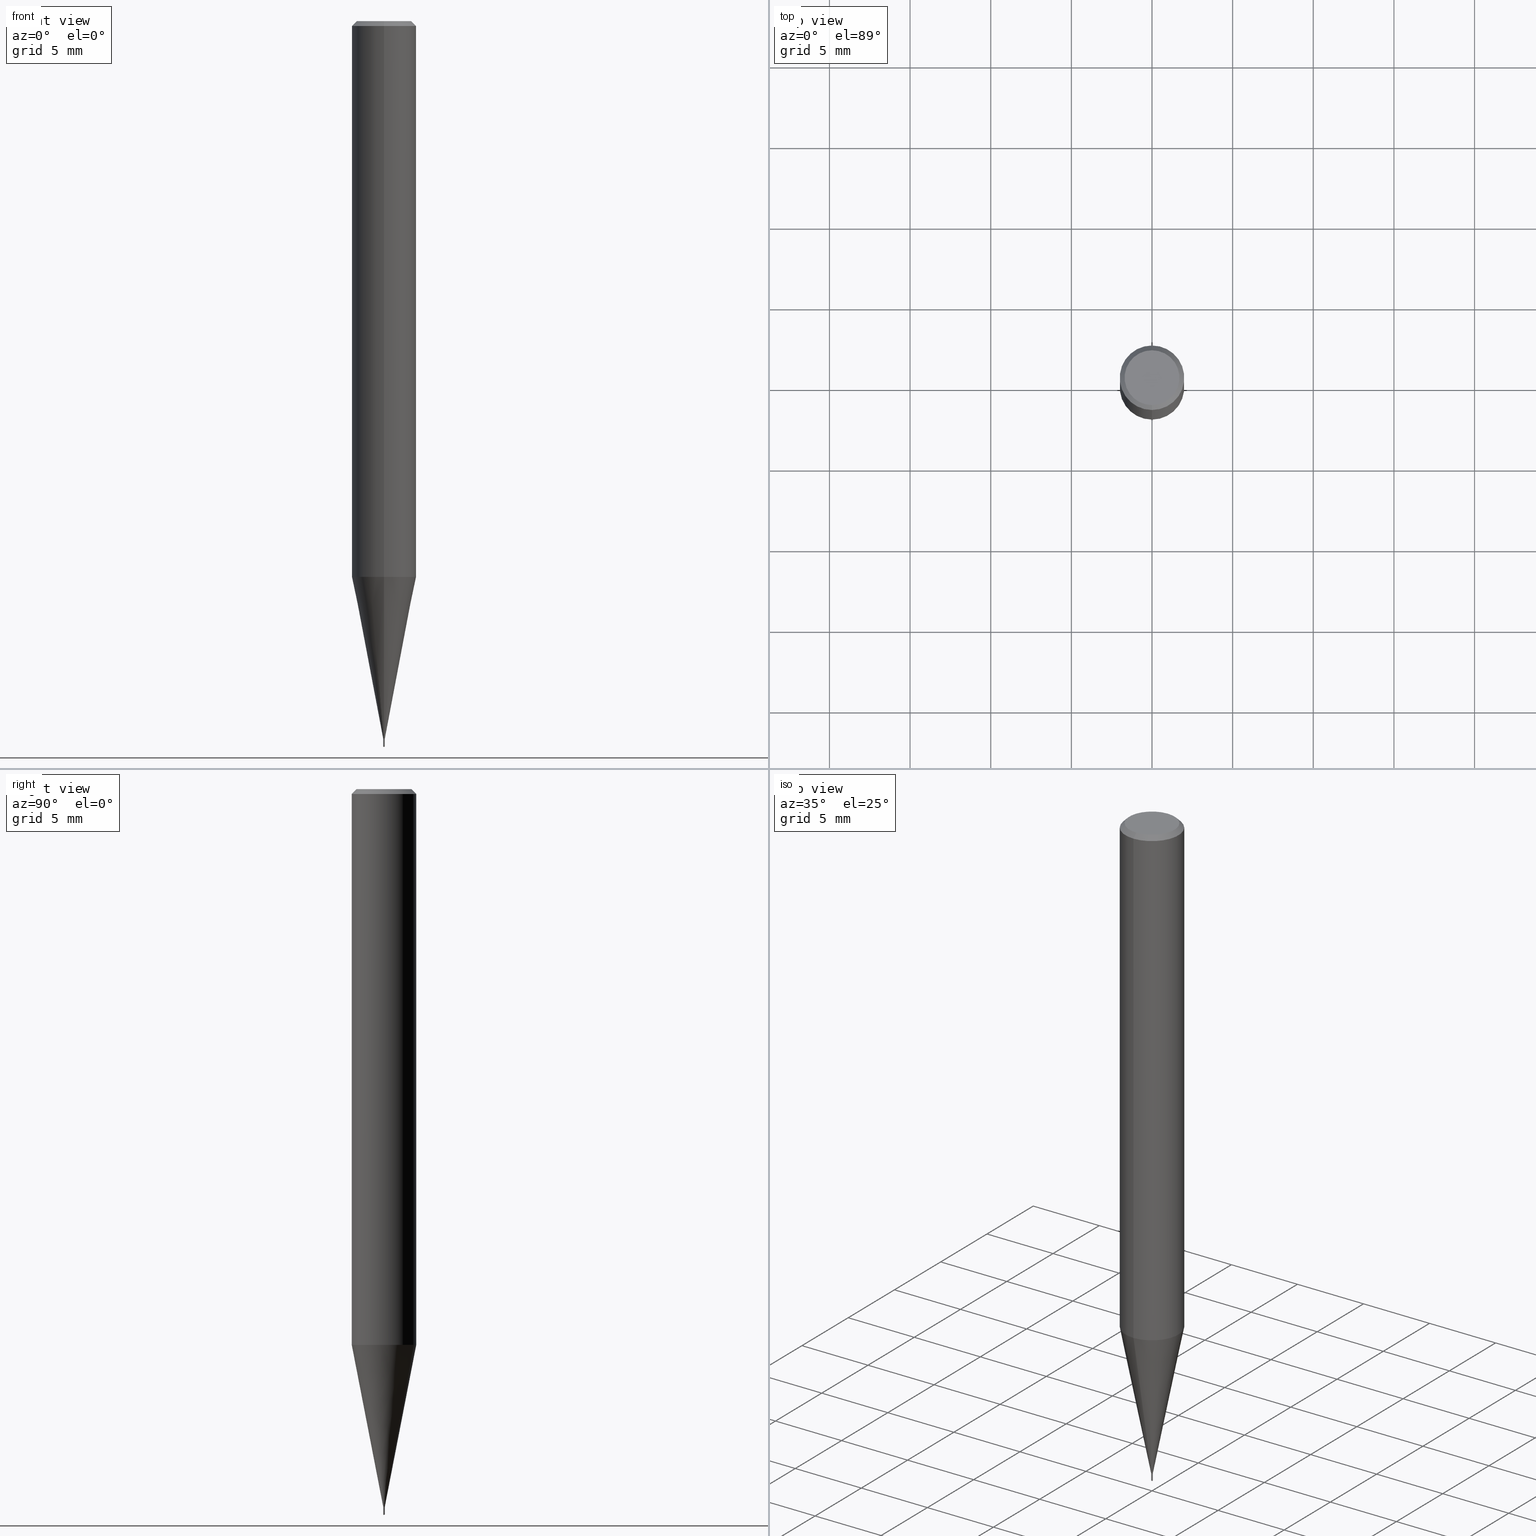
[diagram: canonical four-view strip — front | top / right | iso, engineering-drawing reading convention]
A machine part, canonical four-view strip (front | top / right | iso — engineering-drawing reading convention). The complete STEP part file that produces these views, byte-faithful:
ISO-10303-21;
HEADER;
FILE_DESCRIPTION(('no description'),'unknown implementation level');
FILE_NAME('HSLB2001-005-Huellk.stp','  ',('CIMSOURCE GmbH'),('CADClick - KiM GmbH - www.kimweb.de'),'unknown preprocess','ACIS','unknown authorization');
FILE_SCHEMA(('automotive_design'));
ENDSEC;
DATA;
#1=MECHANICAL_DESIGN_GEOMETRIC_PRESENTATION_REPRESENTATION(' ',(#14,#15,#16,#17,#18,#19,#20,#21,#22,#23,#24,#25,#26,#27,#28,#29,#30,#31,#32,#33,#34,#35,#36,#37,#38,#39,#40,#41,#42,#43,#44,#45,#46,#47,#48,#49,#50,#51,#52,#53,#54,#55,#56,#57,#58,#59,#60,#61,#62,#63,#64,#65,#66,#67,#68,#69,#70,#71,#72,#73,#74),#10);
#2=PRODUCT_DEFINITION_CONTEXT('',#75,'design');
#3=APPLICATION_PROTOCOL_DEFINITION('INTERNATIONAL STANDARD','automotive_design',1994,#75);
#4=PRODUCT_CATEGORY_RELATIONSHIP('NONE','NONE',#76,#77);
#5=SHAPE_DEFINITION_REPRESENTATION(#78,#79);
#6=PRODUCT_DEFINITION_CONTEXT('',#80,'design');
#7=APPLICATION_PROTOCOL_DEFINITION('INTERNATIONAL STANDARD','automotive_design',1994,#80);
#8=PRODUCT_CATEGORY_RELATIONSHIP('NONE','NONE',#81,#82);
#9=SHAPE_DEFINITION_REPRESENTATION(#83,#84);
#10= (GEOMETRIC_REPRESENTATION_CONTEXT(3)GLOBAL_UNCERTAINTY_ASSIGNED_CONTEXT((#87))GLOBAL_UNIT_ASSIGNED_CONTEXT((#89,#90,#91))REPRESENTATION_CONTEXT('NONE','WORKSPACE'));
#14=STYLED_ITEM('',(#93),#94);
#15=STYLED_ITEM('',(#95),#96);
#16=STYLED_ITEM('',(#97),#98);
#17=STYLED_ITEM('',(#99),#100);
#18=STYLED_ITEM('',(#101),#102);
#19=STYLED_ITEM('',(#103),#104);
#20=STYLED_ITEM('',(#105),#106);
#21=STYLED_ITEM('',(#107),#108);
#22=STYLED_ITEM('',(#109),#110);
#23=STYLED_ITEM('',(#111),#112);
#24=STYLED_ITEM('',(#113),#114);
#25=STYLED_ITEM('',(#115),#116);
#26=STYLED_ITEM('',(#117),#118);
#27=STYLED_ITEM('',(#119),#120);
#28=STYLED_ITEM('',(#121),#122);
#29=STYLED_ITEM('',(#123),#124);
#30=STYLED_ITEM('',(#125),#126);
#31=STYLED_ITEM('',(#127),#128);
#32=STYLED_ITEM('',(#129),#130);
#33=STYLED_ITEM('',(#131),#132);
#34=STYLED_ITEM('',(#133),#134);
#35=STYLED_ITEM('',(#135),#136);
#36=STYLED_ITEM('',(#137),#138);
#37=STYLED_ITEM('',(#139),#140);
#38=STYLED_ITEM('',(#141),#142);
#39=STYLED_ITEM('',(#143),#144);
#40=STYLED_ITEM('',(#145),#146);
#41=STYLED_ITEM('',(#147),#148);
#42=STYLED_ITEM('',(#149),#150);
#43=STYLED_ITEM('',(#151),#152);
#44=STYLED_ITEM('',(#153),#154);
#45=STYLED_ITEM('',(#155),#156);
#46=STYLED_ITEM('',(#157),#158);
#47=STYLED_ITEM('',(#159),#160);
#48=STYLED_ITEM('',(#161),#162);
#49=STYLED_ITEM('',(#163),#164);
#50=STYLED_ITEM('',(#165),#166);
#51=STYLED_ITEM('',(#167),#168);
#52=STYLED_ITEM('',(#169),#170);
#53=STYLED_ITEM('',(#171),#172);
#54=STYLED_ITEM('',(#173),#174);
#55=STYLED_ITEM('',(#175),#176);
#56=STYLED_ITEM('',(#177),#178);
#57=STYLED_ITEM('',(#179),#180);
#58=STYLED_ITEM('',(#181),#182);
#59=STYLED_ITEM('',(#183),#184);
#60=STYLED_ITEM('',(#185),#186);
#61=STYLED_ITEM('',(#187),#188);
#62=STYLED_ITEM('',(#189),#190);
#63=STYLED_ITEM('',(#191),#192);
#64=STYLED_ITEM('',(#193),#194);
#65=STYLED_ITEM('',(#195),#196);
#66=STYLED_ITEM('',(#197),#198);
#67=STYLED_ITEM('',(#199),#200);
#68=STYLED_ITEM('',(#201),#202);
#69=STYLED_ITEM('',(#203),#204);
#70=STYLED_ITEM('',(#205),#206);
#71=STYLED_ITEM('',(#207),#208);
#72=STYLED_ITEM('',(#209),#210);
#73=STYLED_ITEM('',(#211),#212);
#74=STYLED_ITEM('',(#213),#214);
#75=APPLICATION_CONTEXT(' ');
#76=PRODUCT_CATEGORY('part','NONE');
#77=PRODUCT_RELATED_PRODUCT_CATEGORY('detail',' ',(#215));
#78=PRODUCT_DEFINITION_SHAPE('NONE','NONE',#216);
#79=ADVANCED_BREP_SHAPE_REPRESENTATION('1',(#202,#217),#10);
#80=APPLICATION_CONTEXT(' ');
#81=PRODUCT_CATEGORY('part','NONE');
#82=PRODUCT_RELATED_PRODUCT_CATEGORY('detail',' ',(#218));
#83=PRODUCT_DEFINITION_SHAPE('NONE','NONE',#219);
#84=ADVANCED_BREP_SHAPE_REPRESENTATION('2',(#158,#220),#10);
#87=UNCERTAINTY_MEASURE_WITH_UNIT(LENGTH_MEASURE(1.0E-006),#89,'','');
#89= (CONVERSION_BASED_UNIT('MILLIMETRE',#223)LENGTH_UNIT()NAMED_UNIT(#226));
#90= (NAMED_UNIT(#228)PLANE_ANGLE_UNIT()SI_UNIT($,.RADIAN.));
#91= (NAMED_UNIT(#228)SOLID_ANGLE_UNIT()SI_UNIT($,.STERADIAN.));
#93=PRESENTATION_STYLE_ASSIGNMENT((#234));
#94=ADVANCED_FACE('',(#235),#236,.T.);
#95=PRESENTATION_STYLE_ASSIGNMENT((#237));
#96=EDGE_CURVE('',#198,#172,#238,.T.);
#97=PRESENTATION_STYLE_ASSIGNMENT((#239));
#98=EDGE_CURVE('',#132,#160,#240,.T.);
#99=PRESENTATION_STYLE_ASSIGNMENT((#241));
#100=VERTEX_POINT('',#242);
#101=PRESENTATION_STYLE_ASSIGNMENT((#243));
#102=EDGE_CURVE('',#188,#190,#244,.T.);
#103=PRESENTATION_STYLE_ASSIGNMENT((#245));
#104=ADVANCED_FACE('',(#246),#247,.T.);
#105=PRESENTATION_STYLE_ASSIGNMENT((#248));
#106=ADVANCED_FACE('',(#249),#250,.T.);
#107=PRESENTATION_STYLE_ASSIGNMENT((#251));
#108=EDGE_CURVE('',#196,#122,#252,.T.);
#109=PRESENTATION_STYLE_ASSIGNMENT((#253));
#110=ADVANCED_FACE('',(#254),#255,.T.);
#111=PRESENTATION_STYLE_ASSIGNMENT((#256));
#112=ADVANCED_FACE('',(#257),#258,.T.);
#113=PRESENTATION_STYLE_ASSIGNMENT((#259));
#114=EDGE_CURVE('',#160,#180,#260,.T.);
#115=PRESENTATION_STYLE_ASSIGNMENT((#261));
#116=EDGE_CURVE('',#198,#194,#262,.T.);
#117=PRESENTATION_STYLE_ASSIGNMENT((#263));
#118=ADVANCED_FACE('',(#264),#265,.T.);
#119=PRESENTATION_STYLE_ASSIGNMENT((#266));
#120=EDGE_CURVE('',#182,#122,#267,.T.);
#121=PRESENTATION_STYLE_ASSIGNMENT((#268));
#122=VERTEX_POINT('',#269);
#123=PRESENTATION_STYLE_ASSIGNMENT((#270));
#124=ADVANCED_FACE('',(#271),#272,.T.);
#125=PRESENTATION_STYLE_ASSIGNMENT((#273));
#126=ADVANCED_FACE('',(#274),#275,.T.);
#127=PRESENTATION_STYLE_ASSIGNMENT((#276));
#128=EDGE_CURVE('',#186,#142,#277,.T.);
#129=PRESENTATION_STYLE_ASSIGNMENT((#278));
#130=ADVANCED_FACE('',(#279),#280,.T.);
#131=PRESENTATION_STYLE_ASSIGNMENT((#281));
#132=VERTEX_POINT('',#282);
#133=PRESENTATION_STYLE_ASSIGNMENT((#283));
#134=EDGE_CURVE('',#180,#160,#284,.T.);
#135=PRESENTATION_STYLE_ASSIGNMENT((#285));
#136=ADVANCED_FACE('',(#286),#287,.T.);
#137=PRESENTATION_STYLE_ASSIGNMENT((#288));
#138=VERTEX_POINT('',#289);
#139=PRESENTATION_STYLE_ASSIGNMENT((#290));
#140=ADVANCED_FACE('',(#291),#292,.T.);
#141=PRESENTATION_STYLE_ASSIGNMENT((#293));
#142=VERTEX_POINT('',#294);
#143=PRESENTATION_STYLE_ASSIGNMENT((#295));
#144=ADVANCED_FACE('',(#296,#297),#298,.T.);
#145=PRESENTATION_STYLE_ASSIGNMENT((#299));
#146=VERTEX_POINT('',#300);
#147=PRESENTATION_STYLE_ASSIGNMENT((#301));
#148=EDGE_CURVE('',#142,#188,#302,.T.);
#149=PRESENTATION_STYLE_ASSIGNMENT((#303));
#150=EDGE_CURVE('',#138,#142,#304,.T.);
#151=PRESENTATION_STYLE_ASSIGNMENT((#305));
#152=EDGE_CURVE('',#194,#198,#306,.T.);
#153=PRESENTATION_STYLE_ASSIGNMENT((#307));
#154=EDGE_CURVE('',#190,#188,#308,.T.);
#155=PRESENTATION_STYLE_ASSIGNMENT((#309));
#156=ADVANCED_FACE('',(#310),#311,.T.);
#157=PRESENTATION_STYLE_ASSIGNMENT((#312));
#158=MANIFOLD_SOLID_BREP('2',#313);
#159=PRESENTATION_STYLE_ASSIGNMENT((#314));
#160=VERTEX_POINT('',#315);
#161=PRESENTATION_STYLE_ASSIGNMENT((#316));
#162=ADVANCED_FACE('',(#317),#318,.T.);
#163=PRESENTATION_STYLE_ASSIGNMENT((#319));
#164=EDGE_CURVE('',#146,#172,#320,.T.);
#165=PRESENTATION_STYLE_ASSIGNMENT((#321));
#166=EDGE_CURVE('',#122,#182,#322,.T.);
#167=PRESENTATION_STYLE_ASSIGNMENT((#323));
#168=EDGE_CURVE('',#182,#132,#324,.T.);
#169=PRESENTATION_STYLE_ASSIGNMENT((#325));
#170=EDGE_CURVE('',#100,#138,#326,.T.);
#171=PRESENTATION_STYLE_ASSIGNMENT((#327));
#172=VERTEX_POINT('',#328);
#173=PRESENTATION_STYLE_ASSIGNMENT((#329));
#174=EDGE_CURVE('',#146,#194,#330,.T.);
#175=PRESENTATION_STYLE_ASSIGNMENT((#331));
#176=EDGE_CURVE('',#172,#146,#332,.T.);
#177=PRESENTATION_STYLE_ASSIGNMENT((#333));
#178=EDGE_CURVE('',#190,#186,#334,.T.);
#179=PRESENTATION_STYLE_ASSIGNMENT((#335));
#180=VERTEX_POINT('',#336);
#181=PRESENTATION_STYLE_ASSIGNMENT((#337));
#182=VERTEX_POINT('',#338);
#183=PRESENTATION_STYLE_ASSIGNMENT((#339));
#184=EDGE_CURVE('',#180,#196,#340,.T.);
#185=PRESENTATION_STYLE_ASSIGNMENT((#341));
#186=VERTEX_POINT('',#342);
#187=PRESENTATION_STYLE_ASSIGNMENT((#343));
#188=VERTEX_POINT('',#344);
#189=PRESENTATION_STYLE_ASSIGNMENT((#345));
#190=VERTEX_POINT('',#346);
#191=PRESENTATION_STYLE_ASSIGNMENT((#347));
#192=EDGE_CURVE('',#132,#196,#348,.T.);
#193=PRESENTATION_STYLE_ASSIGNMENT((#349));
#194=VERTEX_POINT('',#350);
#195=PRESENTATION_STYLE_ASSIGNMENT((#351));
#196=VERTEX_POINT('',#352);
#197=PRESENTATION_STYLE_ASSIGNMENT((#353));
#198=VERTEX_POINT('',#354);
#199=PRESENTATION_STYLE_ASSIGNMENT((#355));
#200=EDGE_CURVE('',#196,#132,#356,.T.);
#201=PRESENTATION_STYLE_ASSIGNMENT((#357));
#202=MANIFOLD_SOLID_BREP('1',#358);
#203=PRESENTATION_STYLE_ASSIGNMENT((#359));
#204=EDGE_CURVE('',#138,#100,#360,.T.);
#205=PRESENTATION_STYLE_ASSIGNMENT((#361));
#206=EDGE_CURVE('',#186,#100,#362,.T.);
#207=PRESENTATION_STYLE_ASSIGNMENT((#363));
#208=ADVANCED_FACE('',(#364),#365,.T.);
#209=PRESENTATION_STYLE_ASSIGNMENT((#366));
#210=EDGE_CURVE('',#146,#172,#367,.T.);
#211=PRESENTATION_STYLE_ASSIGNMENT((#368));
#212=ADVANCED_FACE('',(#369),#370,.T.);
#213=PRESENTATION_STYLE_ASSIGNMENT((#371));
#214=EDGE_CURVE('',#142,#186,#372,.T.);
#215=PRODUCT('1','1','PART-1-DESC',(#373));
#216=PRODUCT_DEFINITION('NONE','NONE',#374,#2);
#217=AXIS2_PLACEMENT_3D('',#375,#376,#377);
#218=PRODUCT('2','2','PART-2-DESC',(#378));
#219=PRODUCT_DEFINITION('NONE','NONE',#379,#6);
#220=AXIS2_PLACEMENT_3D('',#380,#381,#382);
#223=LENGTH_MEASURE_WITH_UNIT(LENGTH_MEASURE(1.0),#383);
#226=DIMENSIONAL_EXPONENTS(1.0,0.0,0.0,0.0,0.0,0.0,0.0);
#228=DIMENSIONAL_EXPONENTS(0.0,0.0,0.0,0.0,0.0,0.0,0.0);
#234=SURFACE_STYLE_USAGE(.BOTH.,#384);
#235=FACE_OUTER_BOUND('',#385,.T.);
#236=CONICAL_SURFACE('',#386,1.0237,0.191981401646118);
#237=CURVE_STYLE('',#387,POSITIVE_LENGTH_MEASURE(1.0E-006),#388);
#238=LINE('',#389,#390);
#239=CURVE_STYLE('',#391,POSITIVE_LENGTH_MEASURE(1.0E-006),#392);
#240=LINE('',#393,#394);
#241=POINT_STYLE(' ',#395,POSITIVE_LENGTH_MEASURE(1.0E-006),#396);
#242=CARTESIAN_POINT('',(0.0,2.0,-34.455));
#243=CURVE_STYLE('',#397,POSITIVE_LENGTH_MEASURE(1.0E-006),#398);
#244=CIRCLE('',#399,1.7);
#245=SURFACE_STYLE_USAGE(.BOTH.,#400);
#246=FACE_OUTER_BOUND('',#401,.T.);
#247=CONICAL_SURFACE('',#402,1.85,0.785398163397453);
#248=SURFACE_STYLE_USAGE(.BOTH.,#403);
#249=FACE_OUTER_BOUND('',#404,.T.);
#250=CYLINDRICAL_SURFACE('',#405,0.04745);
#251=CURVE_STYLE('',#406,POSITIVE_LENGTH_MEASURE(1.0E-006),#407);
#252=LINE('',#408,#409);
#253=SURFACE_STYLE_USAGE(.BOTH.,#410);
#254=FACE_OUTER_BOUND('',#411,.T.);
#255=CONICAL_SURFACE('',#412,0.04995,0.00333332098773672);
#256=SURFACE_STYLE_USAGE(.BOTH.,#413);
#257=FACE_OUTER_BOUND('',#414,.T.);
#258=CYLINDRICAL_SURFACE('',#415,2.0);
#259=CURVE_STYLE('',#416,POSITIVE_LENGTH_MEASURE(1.0E-006),#417);
#260=CIRCLE('',#418,0.04745);
#261=CURVE_STYLE('',#419,POSITIVE_LENGTH_MEASURE(1.0E-006),#420);
#262=CIRCLE('',#421,0.0499);
#263=SURFACE_STYLE_USAGE(.BOTH.,#422);
#264=FACE_OUTER_BOUND('',#423,.T.);
#265=SPHERICAL_SURFACE('',#424,0.0500000000000001);
#266=CURVE_STYLE('',#425,POSITIVE_LENGTH_MEASURE(1.0E-006),#426);
#267=CIRCLE('',#427,1.99995);
#268=POINT_STYLE(' ',#428,POSITIVE_LENGTH_MEASURE(1.0E-006),#429);
#269=CARTESIAN_POINT('',(2.44915147732706E-016,-1.99995,-34.455));
#270=SURFACE_STYLE_USAGE(.BOTH.,#430);
#271=FACE_OUTER_BOUND('',#431,.T.);
#272=CYLINDRICAL_SURFACE('',#432,2.0);
#273=SURFACE_STYLE_USAGE(.BOTH.,#433);
#274=FACE_OUTER_BOUND('',#434,.T.);
#275=PLANE('',#435);
#276=CURVE_STYLE('',#436,POSITIVE_LENGTH_MEASURE(1.0E-006),#437);
#277=CIRCLE('',#438,2.0);
#278=SURFACE_STYLE_USAGE(.BOTH.,#439);
#279=FACE_OUTER_BOUND('',#440,.T.);
#280=CONICAL_SURFACE('',#441,0.04995,0.00333332098773672);
#281=POINT_STYLE(' ',#442,POSITIVE_LENGTH_MEASURE(1.0E-006),#443);
#282=CARTESIAN_POINT('',(0.0,0.04745,-44.5));
#283=CURVE_STYLE('',#444,POSITIVE_LENGTH_MEASURE(1.0E-006),#445);
#284=CIRCLE('',#446,0.04745);
#285=SURFACE_STYLE_USAGE(.BOTH.,#447);
#286=FACE_OUTER_BOUND('',#448,.T.);
#287=CYLINDRICAL_SURFACE('',#449,0.04745);
#288=POINT_STYLE(' ',#450,POSITIVE_LENGTH_MEASURE(1.0E-006),#451);
#289=CARTESIAN_POINT('',(2.44921270764475E-016,-2.0,-34.455));
#290=SURFACE_STYLE_USAGE(.BOTH.,#452);
#291=FACE_OUTER_BOUND('',#453,.T.);
#292=CONICAL_SURFACE('',#454,1.0237,0.191981401646118);
#293=POINT_STYLE(' ',#455,POSITIVE_LENGTH_MEASURE(1.0E-006),#456);
#294=CARTESIAN_POINT('',(2.44921270764475E-016,-2.0,-0.299999999999997));
#295=SURFACE_STYLE_USAGE(.BOTH.,#457);
#296=FACE_OUTER_BOUND('',#458,.T.);
#297=FACE_BOUND('',#459,.T.);
#298=PLANE('',#460);
#299=POINT_STYLE(' ',#461,POSITIVE_LENGTH_MEASURE(1.0E-006),#462);
#300=CARTESIAN_POINT('',(6.12303176911189E-018,-0.05,-44.95));
#301=CURVE_STYLE('',#463,POSITIVE_LENGTH_MEASURE(1.0E-006),#464);
#302=LINE('',#465,#466);
#303=CURVE_STYLE('',#467,POSITIVE_LENGTH_MEASURE(1.0E-006),#468);
#304=LINE('',#469,#470);
#305=CURVE_STYLE('',#471,POSITIVE_LENGTH_MEASURE(1.0E-006),#472);
#306=CIRCLE('',#473,0.0499);
#307=CURVE_STYLE('',#474,POSITIVE_LENGTH_MEASURE(1.0E-006),#475);
#308=CIRCLE('',#476,1.7);
#309=SURFACE_STYLE_USAGE(.BOTH.,#477);
#310=FACE_OUTER_BOUND('',#478,.T.);
#311=PLANE('',#479);
#312=SURFACE_STYLE_USAGE(.BOTH.,#480);
#313=CLOSED_SHELL('',(#208,#130,#162,#110,#118));
#314=POINT_STYLE(' ',#481,POSITIVE_LENGTH_MEASURE(1.0E-006),#482);
#315=CARTESIAN_POINT('',(0.0,0.04745,-44.92));
#316=SURFACE_STYLE_USAGE(.BOTH.,#483);
#317=FACE_OUTER_BOUND('',#484,.T.);
#318=PLANE('',#485);
#319=CURVE_STYLE('',#486,POSITIVE_LENGTH_MEASURE(1.0E-006),#487);
#320=CIRCLE('',#488,0.05);
#321=CURVE_STYLE('',#489,POSITIVE_LENGTH_MEASURE(1.0E-006),#490);
#322=CIRCLE('',#491,1.99995);
#323=CURVE_STYLE('',#492,POSITIVE_LENGTH_MEASURE(1.0E-006),#493);
#324=LINE('',#494,#495);
#325=CURVE_STYLE('',#496,POSITIVE_LENGTH_MEASURE(1.0E-006),#497);
#326=CIRCLE('',#498,2.0);
#327=POINT_STYLE(' ',#499,POSITIVE_LENGTH_MEASURE(1.0E-006),#500);
#328=CARTESIAN_POINT('',(0.0,0.05,-44.95));
#329=CURVE_STYLE('',#501,POSITIVE_LENGTH_MEASURE(1.0E-006),#502);
#330=LINE('',#503,#504);
#331=CURVE_STYLE('',#505,POSITIVE_LENGTH_MEASURE(1.0E-006),#506);
#332=CIRCLE('',#507,0.05);
#333=CURVE_STYLE('',#508,POSITIVE_LENGTH_MEASURE(1.0E-006),#509);
#334=LINE('',#510,#511);
#335=POINT_STYLE(' ',#512,POSITIVE_LENGTH_MEASURE(1.0E-006),#513);
#336=CARTESIAN_POINT('',(5.81075714888718E-018,-0.04745,-44.92));
#337=POINT_STYLE(' ',#514,POSITIVE_LENGTH_MEASURE(1.0E-006),#515);
#338=CARTESIAN_POINT('',(0.0,1.99995,-34.455));
#339=CURVE_STYLE('',#516,POSITIVE_LENGTH_MEASURE(1.0E-006),#517);
#340=LINE('',#518,#519);
#341=POINT_STYLE(' ',#520,POSITIVE_LENGTH_MEASURE(1.0E-006),#521);
#342=CARTESIAN_POINT('',(0.0,2.0,-0.299999999999997));
#343=POINT_STYLE(' ',#522,POSITIVE_LENGTH_MEASURE(1.0E-006),#523);
#344=CARTESIAN_POINT('',(2.08183080149804E-016,-1.7,0.0));
#345=POINT_STYLE(' ',#524,POSITIVE_LENGTH_MEASURE(1.0E-006),#525);
#346=CARTESIAN_POINT('',(0.0,1.7,0.0));
#347=CURVE_STYLE('',#526,POSITIVE_LENGTH_MEASURE(1.0E-006),#527);
#348=CIRCLE('',#528,0.04745);
#349=POINT_STYLE(' ',#529,POSITIVE_LENGTH_MEASURE(1.0E-006),#530);
#350=CARTESIAN_POINT('',(6.11078570557366E-018,-0.0499,-44.92));
#351=POINT_STYLE(' ',#531,POSITIVE_LENGTH_MEASURE(1.0E-006),#532);
#352=CARTESIAN_POINT('',(5.81075714888718E-018,-0.04745,-44.5));
#353=POINT_STYLE(' ',#533,POSITIVE_LENGTH_MEASURE(1.0E-006),#534);
#354=CARTESIAN_POINT('',(0.0,0.0499,-44.92));
#355=CURVE_STYLE('',#535,POSITIVE_LENGTH_MEASURE(1.0E-006),#536);
#356=CIRCLE('',#537,0.04745);
#357=SURFACE_STYLE_USAGE(.BOTH.,#538);
#358=CLOSED_SHELL('',(#136,#94,#124,#104,#144,#126,#212,#112,#140,#106,#156));
#359=CURVE_STYLE('',#539,POSITIVE_LENGTH_MEASURE(1.0E-006),#540);
#360=CIRCLE('',#541,2.0);
#361=CURVE_STYLE('',#542,POSITIVE_LENGTH_MEASURE(1.0E-006),#543);
#362=LINE('',#544,#545);
#363=SURFACE_STYLE_USAGE(.BOTH.,#546);
#364=FACE_OUTER_BOUND('',#547,.T.);
#365=SPHERICAL_SURFACE('',#548,0.0500000000000001);
#366=CURVE_STYLE('',#549,POSITIVE_LENGTH_MEASURE(1.0E-006),#550);
#367=CIRCLE('',#551,0.0500000000000001);
#368=SURFACE_STYLE_USAGE(.BOTH.,#552);
#369=FACE_OUTER_BOUND('',#553,.T.);
#370=CONICAL_SURFACE('',#554,1.85,0.785398163397453);
#371=CURVE_STYLE('',#555,POSITIVE_LENGTH_MEASURE(1.0E-006),#556);
#372=CIRCLE('',#557,2.0);
#373=PRODUCT_CONTEXT('',#75,'mechanical');
#374=PRODUCT_DEFINITION_FORMATION_WITH_SPECIFIED_SOURCE(' ','NONE',#215,.NOT_KNOWN.);
#375=CARTESIAN_POINT('',(0.0,0.0,0.0));
#376=DIRECTION('',(0.0,0.0,1.0));
#377=DIRECTION('',(1.0,0.0,0.0));
#378=PRODUCT_CONTEXT('',#80,'mechanical');
#379=PRODUCT_DEFINITION_FORMATION_WITH_SPECIFIED_SOURCE(' ','NONE',#218,.NOT_KNOWN.);
#380=CARTESIAN_POINT('',(0.0,0.0,0.0));
#381=DIRECTION('',(0.0,0.0,1.0));
#382=DIRECTION('',(1.0,0.0,0.0));
#383= (NAMED_UNIT(#226)LENGTH_UNIT()SI_UNIT(.MILLI.,.METRE.));
#384=SURFACE_SIDE_STYLE('',(#559));
#385=EDGE_LOOP('',(#560,#561,#562,#563));
#386=AXIS2_PLACEMENT_3D('',#564,#565,#566);
#387=DRAUGHTING_PRE_DEFINED_CURVE_FONT('continuous');
#388=COLOUR_RGB('',0.800000011920929,0.800000011920929,0.800000011920929);
#389=CARTESIAN_POINT('',(-6.11690873734278E-018,0.04995,-44.935));
#390=VECTOR('',#567,1.0);
#391=DRAUGHTING_PRE_DEFINED_CURVE_FONT('continuous');
#392=COLOUR_RGB('',0.498039215803146,0.498039215803146,0.498039215803146);
#393=CARTESIAN_POINT('',(-5.81075714888718E-018,0.04745,-44.71));
#394=VECTOR('',#568,1.0);
#395=PRE_DEFINED_MARKER('');
#396=COLOUR_RGB('',0.498039215803146,0.498039215803146,0.498039215803146);
#397=DRAUGHTING_PRE_DEFINED_CURVE_FONT('continuous');
#398=COLOUR_RGB('',0.498039215803146,0.498039215803146,0.498039215803146);
#399=AXIS2_PLACEMENT_3D('',#569,#570,#571);
#400=SURFACE_SIDE_STYLE('',(#572));
#401=EDGE_LOOP('',(#573,#574,#575,#576));
#402=AXIS2_PLACEMENT_3D('',#577,#578,#579);
#403=SURFACE_SIDE_STYLE('',(#580));
#404=EDGE_LOOP('',(#581,#582,#583,#584));
#405=AXIS2_PLACEMENT_3D('',#585,#586,#587);
#406=DRAUGHTING_PRE_DEFINED_CURVE_FONT('continuous');
#407=COLOUR_RGB('',0.498039215803146,0.498039215803146,0.498039215803146);
#408=CARTESIAN_POINT('',(1.25362952440797E-016,-1.0237,-39.4775));
#409=VECTOR('',#588,1.0);
#410=SURFACE_SIDE_STYLE('',(#589));
#411=EDGE_LOOP('',(#590,#591,#592,#593));
#412=AXIS2_PLACEMENT_3D('',#594,#595,#596);
#413=SURFACE_SIDE_STYLE('',(#597));
#414=EDGE_LOOP('',(#598,#599,#600,#601));
#415=AXIS2_PLACEMENT_3D('',#602,#603,#604);
#416=DRAUGHTING_PRE_DEFINED_CURVE_FONT('continuous');
#417=COLOUR_RGB('',0.498039215803146,0.498039215803146,0.498039215803146);
#418=AXIS2_PLACEMENT_3D('',#605,#606,#607);
#419=DRAUGHTING_PRE_DEFINED_CURVE_FONT('continuous');
#420=COLOUR_RGB('',0.800000011920929,0.800000011920929,0.800000011920929);
#421=AXIS2_PLACEMENT_3D('',#608,#609,#610);
#422=SURFACE_SIDE_STYLE('',(#611));
#423=EDGE_LOOP('',(#612,#613));
#424=AXIS2_PLACEMENT_3D('',#614,#615,#616);
#425=DRAUGHTING_PRE_DEFINED_CURVE_FONT('continuous');
#426=COLOUR_RGB('',0.498039215803146,0.498039215803146,0.498039215803146);
#427=AXIS2_PLACEMENT_3D('',#617,#618,#619);
#428=PRE_DEFINED_MARKER('');
#429=COLOUR_RGB('',0.498039215803146,0.498039215803146,0.498039215803146);
#430=SURFACE_SIDE_STYLE('',(#620));
#431=EDGE_LOOP('',(#621,#622,#623,#624));
#432=AXIS2_PLACEMENT_3D('',#625,#626,#627);
#433=SURFACE_SIDE_STYLE('',(#628));
#434=EDGE_LOOP('',(#629,#630));
#435=AXIS2_PLACEMENT_3D('',#631,#632,#633);
#436=DRAUGHTING_PRE_DEFINED_CURVE_FONT('continuous');
#437=COLOUR_RGB('',0.498039215803146,0.498039215803146,0.498039215803146);
#438=AXIS2_PLACEMENT_3D('',#634,#635,#636);
#439=SURFACE_SIDE_STYLE('',(#637));
#440=EDGE_LOOP('',(#638,#639,#640,#641));
#441=AXIS2_PLACEMENT_3D('',#642,#643,#644);
#442=PRE_DEFINED_MARKER('');
#443=COLOUR_RGB('',0.498039215803146,0.498039215803146,0.498039215803146);
#444=DRAUGHTING_PRE_DEFINED_CURVE_FONT('continuous');
#445=COLOUR_RGB('',0.498039215803146,0.498039215803146,0.498039215803146);
#446=AXIS2_PLACEMENT_3D('',#645,#646,#647);
#447=SURFACE_SIDE_STYLE('',(#648));
#448=EDGE_LOOP('',(#649,#650,#651,#652));
#449=AXIS2_PLACEMENT_3D('',#653,#654,#655);
#450=PRE_DEFINED_MARKER('');
#451=COLOUR_RGB('',0.498039215803146,0.498039215803146,0.498039215803146);
#452=SURFACE_SIDE_STYLE('',(#656));
#453=EDGE_LOOP('',(#657,#658,#659,#660));
#454=AXIS2_PLACEMENT_3D('',#661,#662,#663);
#455=PRE_DEFINED_MARKER('');
#456=COLOUR_RGB('',0.498039215803146,0.498039215803146,0.498039215803146);
#457=SURFACE_SIDE_STYLE('',(#664));
#458=EDGE_LOOP('',(#665,#666));
#459=EDGE_LOOP('',(#667,#668));
#460=AXIS2_PLACEMENT_3D('',#669,#670,#671);
#461=PRE_DEFINED_MARKER('');
#462=COLOUR_RGB('',0.800000011920929,0.800000011920929,0.800000011920929);
#463=DRAUGHTING_PRE_DEFINED_CURVE_FONT('continuous');
#464=COLOUR_RGB('',0.498039215803146,0.498039215803146,0.498039215803146);
#465=CARTESIAN_POINT('',(2.2655217545714E-016,-1.85,-0.149999999999999));
#466=VECTOR('',#672,1.0);
#467=DRAUGHTING_PRE_DEFINED_CURVE_FONT('continuous');
#468=COLOUR_RGB('',0.498039215803146,0.498039215803146,0.498039215803146);
#469=CARTESIAN_POINT('',(2.44921270764475E-016,-2.0,-17.3775));
#470=VECTOR('',#673,1.0);
#471=DRAUGHTING_PRE_DEFINED_CURVE_FONT('continuous');
#472=COLOUR_RGB('',0.800000011920929,0.800000011920929,0.800000011920929);
#473=AXIS2_PLACEMENT_3D('',#674,#675,#676);
#474=DRAUGHTING_PRE_DEFINED_CURVE_FONT('continuous');
#475=COLOUR_RGB('',0.498039215803146,0.498039215803146,0.498039215803146);
#476=AXIS2_PLACEMENT_3D('',#677,#678,#679);
#477=SURFACE_SIDE_STYLE('',(#680));
#478=EDGE_LOOP('',(#681,#682));
#479=AXIS2_PLACEMENT_3D('',#683,#684,#685);
#480=SURFACE_SIDE_STYLE('',(#686));
#481=PRE_DEFINED_MARKER('');
#482=COLOUR_RGB('',0.498039215803146,0.498039215803146,0.498039215803146);
#483=SURFACE_SIDE_STYLE('',(#687));
#484=EDGE_LOOP('',(#688,#689));
#485=AXIS2_PLACEMENT_3D('',#690,#691,#692);
#486=DRAUGHTING_PRE_DEFINED_CURVE_FONT('continuous');
#487=COLOUR_RGB('',0.800000011920929,0.800000011920929,0.800000011920929);
#488=AXIS2_PLACEMENT_3D('',#693,#694,#695);
#489=DRAUGHTING_PRE_DEFINED_CURVE_FONT('continuous');
#490=COLOUR_RGB('',0.498039215803146,0.498039215803146,0.498039215803146);
#491=AXIS2_PLACEMENT_3D('',#696,#697,#698);
#492=DRAUGHTING_PRE_DEFINED_CURVE_FONT('continuous');
#493=COLOUR_RGB('',0.498039215803146,0.498039215803146,0.498039215803146);
#494=CARTESIAN_POINT('',(-1.25362952440797E-016,1.0237,-39.4775));
#495=VECTOR('',#699,1.0);
#496=DRAUGHTING_PRE_DEFINED_CURVE_FONT('continuous');
#497=COLOUR_RGB('',0.498039215803146,0.498039215803146,0.498039215803146);
#498=AXIS2_PLACEMENT_3D('',#700,#701,#702);
#499=PRE_DEFINED_MARKER('');
#500=COLOUR_RGB('',0.800000011920929,0.800000011920929,0.800000011920929);
#501=DRAUGHTING_PRE_DEFINED_CURVE_FONT('continuous');
#502=COLOUR_RGB('',0.800000011920929,0.800000011920929,0.800000011920929);
#503=CARTESIAN_POINT('',(6.11690873734277E-018,-0.04995,-44.935));
#504=VECTOR('',#703,1.0);
#505=DRAUGHTING_PRE_DEFINED_CURVE_FONT('continuous');
#506=COLOUR_RGB('',0.800000011920929,0.800000011920929,0.800000011920929);
#507=AXIS2_PLACEMENT_3D('',#704,#705,#706);
#508=DRAUGHTING_PRE_DEFINED_CURVE_FONT('continuous');
#509=COLOUR_RGB('',0.498039215803146,0.498039215803146,0.498039215803146);
#510=CARTESIAN_POINT('',(-2.2655217545714E-016,1.85,-0.149999999999999));
#511=VECTOR('',#707,1.0);
#512=PRE_DEFINED_MARKER('');
#513=COLOUR_RGB('',0.498039215803146,0.498039215803146,0.498039215803146);
#514=PRE_DEFINED_MARKER('');
#515=COLOUR_RGB('',0.498039215803146,0.498039215803146,0.498039215803146);
#516=DRAUGHTING_PRE_DEFINED_CURVE_FONT('continuous');
#517=COLOUR_RGB('',0.498039215803146,0.498039215803146,0.498039215803146);
#518=CARTESIAN_POINT('',(5.81075714888718E-018,-0.04745,-44.71));
#519=VECTOR('',#708,1.0);
#520=PRE_DEFINED_MARKER('');
#521=COLOUR_RGB('',0.498039215803146,0.498039215803146,0.498039215803146);
#522=PRE_DEFINED_MARKER('');
#523=COLOUR_RGB('',0.498039215803146,0.498039215803146,0.498039215803146);
#524=PRE_DEFINED_MARKER('');
#525=COLOUR_RGB('',0.498039215803146,0.498039215803146,0.498039215803146);
#526=DRAUGHTING_PRE_DEFINED_CURVE_FONT('continuous');
#527=COLOUR_RGB('',0.498039215803146,0.498039215803146,0.498039215803146);
#528=AXIS2_PLACEMENT_3D('',#709,#710,#711);
#529=PRE_DEFINED_MARKER('');
#530=COLOUR_RGB('',0.800000011920929,0.800000011920929,0.800000011920929);
#531=PRE_DEFINED_MARKER('');
#532=COLOUR_RGB('',0.498039215803146,0.498039215803146,0.498039215803146);
#533=PRE_DEFINED_MARKER('');
#534=COLOUR_RGB('',0.800000011920929,0.800000011920929,0.800000011920929);
#535=DRAUGHTING_PRE_DEFINED_CURVE_FONT('continuous');
#536=COLOUR_RGB('',0.498039215803146,0.498039215803146,0.498039215803146);
#537=AXIS2_PLACEMENT_3D('',#712,#713,#714);
#538=SURFACE_SIDE_STYLE('',(#715));
#539=DRAUGHTING_PRE_DEFINED_CURVE_FONT('continuous');
#540=COLOUR_RGB('',0.498039215803146,0.498039215803146,0.498039215803146);
#541=AXIS2_PLACEMENT_3D('',#716,#717,#718);
#542=DRAUGHTING_PRE_DEFINED_CURVE_FONT('continuous');
#543=COLOUR_RGB('',0.498039215803146,0.498039215803146,0.498039215803146);
#544=CARTESIAN_POINT('',(-2.44921270764475E-016,2.0,-17.3775));
#545=VECTOR('',#719,1.0);
#546=SURFACE_SIDE_STYLE('',(#720));
#547=EDGE_LOOP('',(#721,#722));
#548=AXIS2_PLACEMENT_3D('',#723,#724,#725);
#549=DRAUGHTING_PRE_DEFINED_CURVE_FONT('continuous');
#550=COLOUR_RGB('',0.800000011920929,0.800000011920929,0.800000011920929);
#551=AXIS2_PLACEMENT_3D('',#726,#727,#728);
#552=SURFACE_SIDE_STYLE('',(#729));
#553=EDGE_LOOP('',(#730,#731,#732,#733));
#554=AXIS2_PLACEMENT_3D('',#734,#735,#736);
#555=DRAUGHTING_PRE_DEFINED_CURVE_FONT('continuous');
#556=COLOUR_RGB('',0.498039215803146,0.498039215803146,0.498039215803146);
#557=AXIS2_PLACEMENT_3D('',#737,#738,#739);
#559=SURFACE_STYLE_FILL_AREA(#740);
#560=ORIENTED_EDGE('',*,*,#168,.F.);
#561=ORIENTED_EDGE('',*,*,#120,.T.);
#562=ORIENTED_EDGE('',*,*,#108,.F.);
#563=ORIENTED_EDGE('',*,*,#192,.F.);
#564=CARTESIAN_POINT('',(0.0,0.0,-39.4775));
#565=DIRECTION('',(-0.0,-0.0,1.0));
#566=DIRECTION('',(0.0,1.0,0.0));
#567=DIRECTION('',(-4.08199850170158E-019,0.00333331481496923,-0.99999444449074));
#568=DIRECTION('',(0.0,0.0,-1.0));
#569=CARTESIAN_POINT('',(0.0,0.0,0.0));
#570=DIRECTION('',(0.0,0.0,-1.0));
#571=DIRECTION('',(0.0,1.0,0.0));
#572=SURFACE_STYLE_FILL_AREA(#741);
#573=ORIENTED_EDGE('',*,*,#178,.F.);
#574=ORIENTED_EDGE('',*,*,#154,.T.);
#575=ORIENTED_EDGE('',*,*,#148,.F.);
#576=ORIENTED_EDGE('',*,*,#128,.F.);
#577=CARTESIAN_POINT('',(0.0,0.0,-0.149999999999999));
#578=DIRECTION('',(0.0,-0.0,-1.0));
#579=DIRECTION('',(0.0,1.0,0.0));
#580=SURFACE_STYLE_FILL_AREA(#742);
#581=ORIENTED_EDGE('',*,*,#98,.T.);
#582=ORIENTED_EDGE('',*,*,#134,.F.);
#583=ORIENTED_EDGE('',*,*,#184,.T.);
#584=ORIENTED_EDGE('',*,*,#200,.T.);
#585=CARTESIAN_POINT('',(0.0,0.0,-44.71));
#586=DIRECTION('',(-0.0,-0.0,1.0));
#587=DIRECTION('',(0.0,1.0,0.0));
#588=DIRECTION('',(2.33660118667044E-017,-0.190804267785904,0.98162810238638));
#589=SURFACE_STYLE_FILL_AREA(#743);
#590=ORIENTED_EDGE('',*,*,#96,.T.);
#591=ORIENTED_EDGE('',*,*,#164,.F.);
#592=ORIENTED_EDGE('',*,*,#174,.T.);
#593=ORIENTED_EDGE('',*,*,#152,.T.);
#594=CARTESIAN_POINT('',(0.0,0.0,-44.935));
#595=DIRECTION('',(0.0,-0.0,-1.0));
#596=DIRECTION('',(0.0,1.0,0.0));
#597=SURFACE_STYLE_FILL_AREA(#744);
#598=ORIENTED_EDGE('',*,*,#206,.T.);
#599=ORIENTED_EDGE('',*,*,#204,.F.);
#600=ORIENTED_EDGE('',*,*,#150,.T.);
#601=ORIENTED_EDGE('',*,*,#214,.T.);
#602=CARTESIAN_POINT('',(0.0,0.0,-17.3775));
#603=DIRECTION('',(-0.0,-0.0,1.0));
#604=DIRECTION('',(0.0,1.0,0.0));
#605=CARTESIAN_POINT('',(0.0,0.0,-44.92));
#606=DIRECTION('',(0.0,0.0,-1.0));
#607=DIRECTION('',(0.0,1.0,0.0));
#608=CARTESIAN_POINT('',(0.0,0.0,-44.92));
#609=DIRECTION('',(0.0,0.0,-1.0));
#610=DIRECTION('',(0.0,1.0,0.0));
#611=SURFACE_STYLE_FILL_AREA(#745);
#612=ORIENTED_EDGE('',*,*,#210,.T.);
#613=ORIENTED_EDGE('',*,*,#176,.T.);
#614=CARTESIAN_POINT('',(0.0,0.0,-44.95));
#615=DIRECTION('',(0.0,1.0,0.0));
#616=DIRECTION('',(0.0,0.0,-1.0));
#617=CARTESIAN_POINT('',(0.0,0.0,-34.455));
#618=DIRECTION('',(0.0,0.0,-1.0));
#619=DIRECTION('',(0.0,1.0,0.0));
#620=SURFACE_STYLE_FILL_AREA(#746);
#621=ORIENTED_EDGE('',*,*,#206,.F.);
#622=ORIENTED_EDGE('',*,*,#128,.T.);
#623=ORIENTED_EDGE('',*,*,#150,.F.);
#624=ORIENTED_EDGE('',*,*,#170,.F.);
#625=CARTESIAN_POINT('',(0.0,0.0,-17.3775));
#626=DIRECTION('',(-0.0,-0.0,1.0));
#627=DIRECTION('',(0.0,1.0,0.0));
#628=SURFACE_STYLE_FILL_AREA(#747);
#629=ORIENTED_EDGE('',*,*,#154,.F.);
#630=ORIENTED_EDGE('',*,*,#102,.F.);
#631=CARTESIAN_POINT('',(0.0,0.85,0.0));
#632=DIRECTION('',(-0.0,0.0,1.0));
#633=DIRECTION('',(0.0,-1.0,0.0));
#634=CARTESIAN_POINT('',(0.0,0.0,-0.299999999999997));
#635=DIRECTION('',(0.0,0.0,-1.0));
#636=DIRECTION('',(0.0,1.0,0.0));
#637=SURFACE_STYLE_FILL_AREA(#748);
#638=ORIENTED_EDGE('',*,*,#96,.F.);
#639=ORIENTED_EDGE('',*,*,#116,.T.);
#640=ORIENTED_EDGE('',*,*,#174,.F.);
#641=ORIENTED_EDGE('',*,*,#176,.F.);
#642=CARTESIAN_POINT('',(0.0,0.0,-44.935));
#643=DIRECTION('',(0.0,-0.0,-1.0));
#644=DIRECTION('',(0.0,1.0,0.0));
#645=CARTESIAN_POINT('',(0.0,0.0,-44.92));
#646=DIRECTION('',(0.0,0.0,-1.0));
#647=DIRECTION('',(0.0,1.0,0.0));
#648=SURFACE_STYLE_FILL_AREA(#749);
#649=ORIENTED_EDGE('',*,*,#98,.F.);
#650=ORIENTED_EDGE('',*,*,#192,.T.);
#651=ORIENTED_EDGE('',*,*,#184,.F.);
#652=ORIENTED_EDGE('',*,*,#114,.F.);
#653=CARTESIAN_POINT('',(0.0,0.0,-44.71));
#654=DIRECTION('',(-0.0,-0.0,1.0));
#655=DIRECTION('',(0.0,1.0,0.0));
#656=SURFACE_STYLE_FILL_AREA(#750);
#657=ORIENTED_EDGE('',*,*,#168,.T.);
#658=ORIENTED_EDGE('',*,*,#200,.F.);
#659=ORIENTED_EDGE('',*,*,#108,.T.);
#660=ORIENTED_EDGE('',*,*,#166,.T.);
#661=CARTESIAN_POINT('',(0.0,0.0,-39.4775));
#662=DIRECTION('',(-0.0,-0.0,1.0));
#663=DIRECTION('',(0.0,1.0,0.0));
#664=SURFACE_STYLE_FILL_AREA(#751);
#665=ORIENTED_EDGE('',*,*,#170,.T.);
#666=ORIENTED_EDGE('',*,*,#204,.T.);
#667=ORIENTED_EDGE('',*,*,#120,.F.);
#668=ORIENTED_EDGE('',*,*,#166,.F.);
#669=CARTESIAN_POINT('',(0.0,1.0,-34.455));
#670=DIRECTION('',(0.0,0.0,-1.0));
#671=DIRECTION('',(0.0,1.0,0.0));
#672=DIRECTION('',(-8.6592745707194E-017,0.707106781186551,0.707106781186544));
#673=DIRECTION('',(-0.0,-0.0,1.0));
#674=CARTESIAN_POINT('',(0.0,0.0,-44.92));
#675=DIRECTION('',(0.0,0.0,-1.0));
#676=DIRECTION('',(0.0,1.0,0.0));
#677=CARTESIAN_POINT('',(0.0,0.0,0.0));
#678=DIRECTION('',(0.0,0.0,-1.0));
#679=DIRECTION('',(0.0,1.0,0.0));
#680=SURFACE_STYLE_FILL_AREA(#752);
#681=ORIENTED_EDGE('',*,*,#114,.T.);
#682=ORIENTED_EDGE('',*,*,#134,.T.);
#683=CARTESIAN_POINT('',(0.0,0.023725,-44.92));
#684=DIRECTION('',(0.0,0.0,-1.0));
#685=DIRECTION('',(0.0,1.0,0.0));
#686=SURFACE_STYLE_FILL_AREA(#753);
#687=SURFACE_STYLE_FILL_AREA(#754);
#688=ORIENTED_EDGE('',*,*,#116,.F.);
#689=ORIENTED_EDGE('',*,*,#152,.F.);
#690=CARTESIAN_POINT('',(0.0,0.02495,-44.92));
#691=DIRECTION('',(-0.0,0.0,1.0));
#692=DIRECTION('',(0.0,-1.0,0.0));
#693=CARTESIAN_POINT('',(0.0,0.0,-44.95));
#694=DIRECTION('',(0.0,0.0,-1.0));
#695=DIRECTION('',(0.0,1.0,0.0));
#696=CARTESIAN_POINT('',(0.0,0.0,-34.455));
#697=DIRECTION('',(0.0,0.0,-1.0));
#698=DIRECTION('',(0.0,1.0,0.0));
#699=DIRECTION('',(2.33660118667044E-017,-0.190804267785904,-0.98162810238638));
#700=CARTESIAN_POINT('',(0.0,0.0,-34.455));
#701=DIRECTION('',(0.0,0.0,-1.0));
#702=DIRECTION('',(0.0,1.0,0.0));
#703=DIRECTION('',(-4.08199850170158E-019,0.00333331481496923,0.99999444449074));
#704=CARTESIAN_POINT('',(0.0,0.0,-44.95));
#705=DIRECTION('',(0.0,0.0,-1.0));
#706=DIRECTION('',(0.0,1.0,0.0));
#707=DIRECTION('',(-8.6592745707194E-017,0.707106781186551,-0.707106781186544));
#708=DIRECTION('',(-0.0,-0.0,1.0));
#709=CARTESIAN_POINT('',(0.0,0.0,-44.5));
#710=DIRECTION('',(0.0,0.0,-1.0));
#711=DIRECTION('',(0.0,1.0,0.0));
#712=CARTESIAN_POINT('',(0.0,0.0,-44.5));
#713=DIRECTION('',(0.0,0.0,-1.0));
#714=DIRECTION('',(0.0,1.0,0.0));
#715=SURFACE_STYLE_FILL_AREA(#755);
#716=CARTESIAN_POINT('',(0.0,0.0,-34.455));
#717=DIRECTION('',(0.0,0.0,-1.0));
#718=DIRECTION('',(0.0,1.0,0.0));
#719=DIRECTION('',(0.0,0.0,-1.0));
#720=SURFACE_STYLE_FILL_AREA(#756);
#721=ORIENTED_EDGE('',*,*,#210,.F.);
#722=ORIENTED_EDGE('',*,*,#164,.T.);
#723=CARTESIAN_POINT('',(0.0,0.0,-44.95));
#724=DIRECTION('',(0.0,1.0,0.0));
#725=DIRECTION('',(0.0,0.0,-1.0));
#726=CARTESIAN_POINT('',(0.0,0.0,-44.95));
#727=DIRECTION('',(1.0,0.0,1.22460635382245E-016));
#728=DIRECTION('',(-1.22460635382245E-016,0.0,1.0));
#729=SURFACE_STYLE_FILL_AREA(#757);
#730=ORIENTED_EDGE('',*,*,#178,.T.);
#731=ORIENTED_EDGE('',*,*,#214,.F.);
#732=ORIENTED_EDGE('',*,*,#148,.T.);
#733=ORIENTED_EDGE('',*,*,#102,.T.);
#734=CARTESIAN_POINT('',(0.0,0.0,-0.149999999999999));
#735=DIRECTION('',(0.0,-0.0,-1.0));
#736=DIRECTION('',(0.0,1.0,0.0));
#737=CARTESIAN_POINT('',(0.0,0.0,-0.299999999999997));
#738=DIRECTION('',(0.0,0.0,-1.0));
#739=DIRECTION('',(0.0,1.0,0.0));
#740=FILL_AREA_STYLE('',(#758));
#741=FILL_AREA_STYLE('',(#759));
#742=FILL_AREA_STYLE('',(#760));
#743=FILL_AREA_STYLE('',(#761));
#744=FILL_AREA_STYLE('',(#762));
#745=FILL_AREA_STYLE('',(#763));
#746=FILL_AREA_STYLE('',(#764));
#747=FILL_AREA_STYLE('',(#765));
#748=FILL_AREA_STYLE('',(#766));
#749=FILL_AREA_STYLE('',(#767));
#750=FILL_AREA_STYLE('',(#768));
#751=FILL_AREA_STYLE('',(#769));
#752=FILL_AREA_STYLE('',(#770));
#753=FILL_AREA_STYLE('',(#771));
#754=FILL_AREA_STYLE('',(#772));
#755=FILL_AREA_STYLE('',(#773));
#756=FILL_AREA_STYLE('',(#774));
#757=FILL_AREA_STYLE('',(#775));
#758=FILL_AREA_STYLE_COLOUR('',#776);
#759=FILL_AREA_STYLE_COLOUR('',#777);
#760=FILL_AREA_STYLE_COLOUR('',#778);
#761=FILL_AREA_STYLE_COLOUR('',#779);
#762=FILL_AREA_STYLE_COLOUR('',#780);
#763=FILL_AREA_STYLE_COLOUR('',#781);
#764=FILL_AREA_STYLE_COLOUR('',#782);
#765=FILL_AREA_STYLE_COLOUR('',#783);
#766=FILL_AREA_STYLE_COLOUR('',#784);
#767=FILL_AREA_STYLE_COLOUR('',#785);
#768=FILL_AREA_STYLE_COLOUR('',#786);
#769=FILL_AREA_STYLE_COLOUR('',#787);
#770=FILL_AREA_STYLE_COLOUR('',#788);
#771=FILL_AREA_STYLE_COLOUR('',#789);
#772=FILL_AREA_STYLE_COLOUR('',#790);
#773=FILL_AREA_STYLE_COLOUR('',#791);
#774=FILL_AREA_STYLE_COLOUR('',#792);
#775=FILL_AREA_STYLE_COLOUR('',#793);
#776=COLOUR_RGB('',0.498039215803146,0.498039215803146,0.498039215803146);
#777=COLOUR_RGB('',0.498039215803146,0.498039215803146,0.498039215803146);
#778=COLOUR_RGB('',0.498039215803146,0.498039215803146,0.498039215803146);
#779=COLOUR_RGB('',0.800000011920929,0.800000011920929,0.800000011920929);
#780=COLOUR_RGB('',0.498039215803146,0.498039215803146,0.498039215803146);
#781=COLOUR_RGB('',0.800000011920929,0.800000011920929,0.800000011920929);
#782=COLOUR_RGB('',0.498039215803146,0.498039215803146,0.498039215803146);
#783=COLOUR_RGB('',0.498039215803146,0.498039215803146,0.498039215803146);
#784=COLOUR_RGB('',0.800000011920929,0.800000011920929,0.800000011920929);
#785=COLOUR_RGB('',0.498039215803146,0.498039215803146,0.498039215803146);
#786=COLOUR_RGB('',0.498039215803146,0.498039215803146,0.498039215803146);
#787=COLOUR_RGB('',0.498039215803146,0.498039215803146,0.498039215803146);
#788=COLOUR_RGB('',0.498039215803146,0.498039215803146,0.498039215803146);
#789=COLOUR_RGB('',0.800000011920929,0.800000011920929,0.800000011920929);
#790=COLOUR_RGB('',0.800000011920929,0.800000011920929,0.800000011920929);
#791=COLOUR_RGB('',0.498039215803146,0.498039215803146,0.498039215803146);
#792=COLOUR_RGB('',0.800000011920929,0.800000011920929,0.800000011920929);
#793=COLOUR_RGB('',0.498039215803146,0.498039215803146,0.498039215803146);
#794=AXIS2_PLACEMENT_3D('PCS',#795,#796,#797);
#795=CARTESIAN_POINT('',(0.0,0.0,0.0));
#796=DIRECTION('',(0.0,0.0,1.0));
#797=DIRECTION('',(1.0,0.0,0.0));
#798=AXIS2_PLACEMENT_3D('CIP',#799,#800,#801);
#799=CARTESIAN_POINT('',(0.0,0.0,-45.0));
#800=DIRECTION('',(0.0,0.0,1.0));
#801=DIRECTION('',(1.0,0.0,0.0));
#802=AXIS2_PLACEMENT_3D('CRP',#803,#804,#805);
#803=CARTESIAN_POINT('',(-0.05,0.0,-45.0));
#804=DIRECTION('',(0.0,0.0,1.0));
#805=DIRECTION('',(1.0,0.0,0.0));
#806=AXIS2_PLACEMENT_3D('MCS',#807,#808,#809);
#807=CARTESIAN_POINT('',(0.0,0.0,-34.455));
#808=DIRECTION('',(0.0,0.0,1.0));
#809=DIRECTION('',(1.0,0.0,0.0));
#810=CONSTRUCTIVE_GEOMETRY_REPRESENTATION_RELATIONSHIP('coordinate systems',$,#79,#811);
#811=CONSTRUCTIVE_GEOMETRY_REPRESENTATION('coordinate systems',(#794,#798,#802,#806),#10);
ENDSEC;
END-ISO-10303-21;
